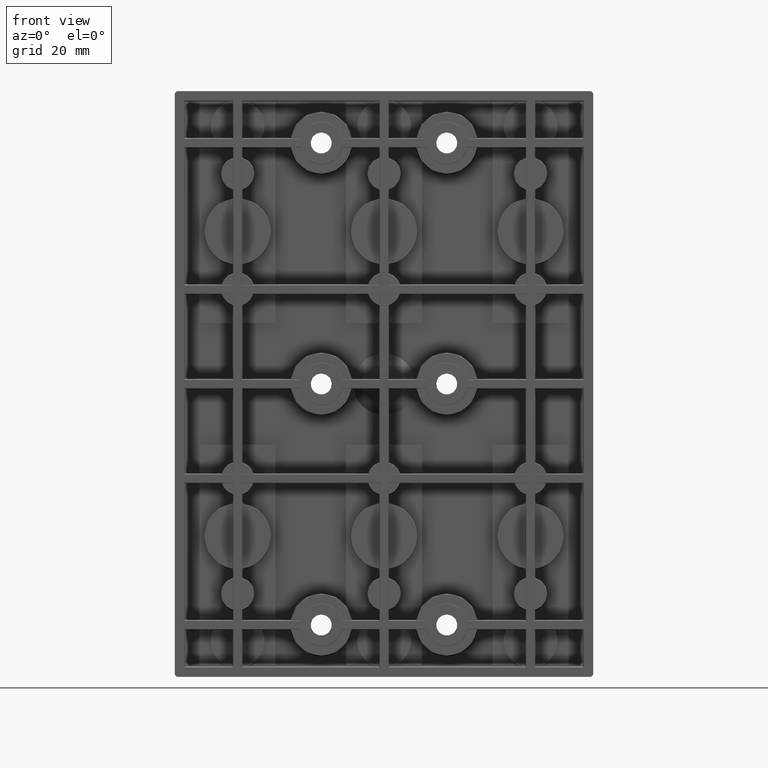
[diagram: clean part render]
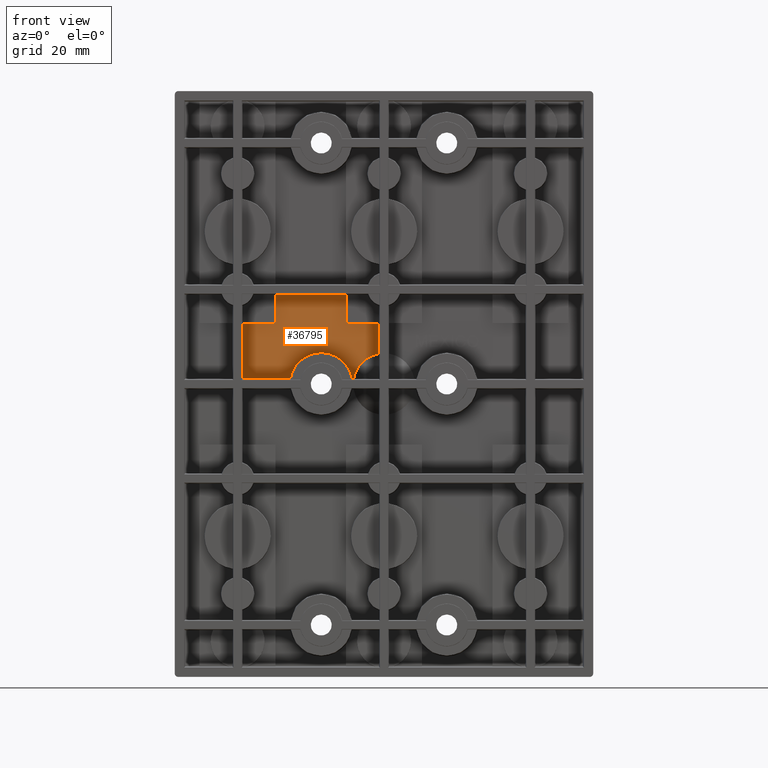
[diagram: same view with one face highlighted and labeled with its STEP entity id]
A machine part, front view. The second image highlights one B-rep face of the part: STEP entity #36795.
In plain terms, the highlighted planar face has unit normal (0, -1, 0).
Its self-contained STEP definition (entity closure, byte-faithful):
#530 = FACE_OUTER_BOUND ( 'NONE', #25296, .T. ) ;
#922 = CARTESIAN_POINT ( 'NONE',  ( -1.294999999999992200, 0.7550000000000000000, 0.7249999999999950900 ) ) ;
#1024 = LINE ( 'NONE', #40444, #17157 ) ;
#1950 = VERTEX_POINT ( 'NONE', #21116 ) ;
#2747 = EDGE_CURVE ( 'NONE', #16910, #12983, #18155, .T. ) ;
#2904 = DIRECTION ( 'NONE',  ( -0.0000000000000000000, 4.937591343513748400E-033, 1.000000000000000000 ) ) ;
#2931 = CARTESIAN_POINT ( 'NONE',  ( -0.1528150672455964000, 0.7550000000000001200, 0.3346633711737749300 ) ) ;
#3986 = ORIENTED_EDGE ( 'NONE', *, *, #31484, .F. ) ;
#4424 = CARTESIAN_POINT ( 'NONE',  ( 2.499999999999984900, 0.7550000000000000000, 3.499999999999984000 ) ) ;
#6227 = CARTESIAN_POINT ( 'NONE',  ( -0.3436647035544258500, 0.7550000000000000000, 0.1353561976983191900 ) ) ;
#6381 = CARTESIAN_POINT ( 'NONE',  ( -0.09949311526371457100, 0.7550000000000005600, 0.3542001307817115300 ) ) ;
#7174 = CARTESIAN_POINT ( 'NONE',  ( -1.687499999999990700, 0.7550000000000000000, 3.499999999999984900 ) ) ;
#7868 = PLANE ( 'NONE',  #40253 ) ;
#8152 = DIRECTION ( 'NONE',  ( 0.0000000000000000000, 1.000000000000000000, -0.0000000000000000000 ) ) ;
#8536 = LINE ( 'NONE', #37744, #9635 ) ;
#8606 = CARTESIAN_POINT ( 'NONE',  ( -1.294999999999992200, 0.7550000000000000000, 3.499999999999984000 ) ) ;
#8884 = ORIENTED_EDGE ( 'NONE', *, *, #39370, .F. ) ;
#8966 = VERTEX_POINT ( 'NONE', #22631 ) ;
#9038 = ORIENTED_EDGE ( 'NONE', *, *, #31733, .T. ) ;
#9315 = LINE ( 'NONE', #7174, #42619 ) ;
#9481 = B_SPLINE_CURVE_WITH_KNOTS ( 'NONE', 3,
 ( #26595, #40473, #6227, #30259, #9684, #33714, #13109, #37191, #16567, #40607, #20014, #44064, #23449, #2931, #26906, #6381, #30397, #9841 ),
 .UNSPECIFIED., .F., .F.,
 ( 4, 2, 2, 2, 2, 2, 2, 2, 4 ),
 ( 1.517883041479706200E-018, 0.002850857584673449500, 0.003563571980841812000, 0.004276286377010173800, 0.005701715169346899800, 0.007127143961683624100, 0.008552572754020349200, 0.009978001546357074400, 0.01140343033869380000 ),
 .UNSPECIFIED. ) ;
#9635 = VECTOR ( 'NONE', #17116, 39.37007874015748100 ) ;
#9684 = CARTESIAN_POINT ( 'NONE',  ( -0.3172628989635370400, 0.7550000000000000000, 0.1855614537071531600 ) ) ;
#9841 = CARTESIAN_POINT ( 'NONE',  ( -0.06249999999999959100, 0.7550000000000000000, 0.3620687089490045600 ) ) ;
#10095 = EDGE_CURVE ( 'NONE', #28309, #12983, #17810, .T. ) ;
#10575 = CARTESIAN_POINT ( 'NONE',  ( 2.499999999999984900, 0.7550000000000000000, 1.067499999999995500 ) ) ;
#10605 = DIRECTION ( 'NONE',  ( 2.717428765842211200E-016, -4.743289554558180800E-018, 1.000000000000000000 ) ) ;
#11380 = LINE ( 'NONE', #18210, #20516 ) ;
#11473 = EDGE_CURVE ( 'NONE', #28309, #33441, #42425, .T. ) ;
#11836 = VERTEX_POINT ( 'NONE', #42496 ) ;
#11945 = DIRECTION ( 'NONE',  ( -1.000000000000000000, 8.989072594533648600E-018, -5.149836240369455700E-016 ) ) ;
#12088 = VERTEX_POINT ( 'NONE', #40525 ) ;
#12925 = DIRECTION ( 'NONE',  ( -1.000000000000000000, -1.734369980111900200E-018, 9.936198961415210800E-017 ) ) ;
#12983 = VERTEX_POINT ( 'NONE', #922 ) ;
#13007 = EDGE_CURVE ( 'NONE', #11836, #12088, #39075, .T. ) ;
#13086 = CARTESIAN_POINT ( 'NONE',  ( -0.4549999999999982900, 0.7550000000000000000, 3.499999999999984000 ) ) ;
#13109 = CARTESIAN_POINT ( 'NONE',  ( -0.3020849705146668700, 0.7549999999999995600, 0.2093617303273693200 ) ) ;
#13309 = ORIENTED_EDGE ( 'NONE', *, *, #11473, .F. ) ;
#13746 = ORIENTED_EDGE ( 'NONE', *, *, #24867, .F. ) ;
#14434 = CARTESIAN_POINT ( 'NONE',  ( -0.06249999999999951400, 0.7550000000000000000, 0.7249999999999947600 ) ) ;
#16567 = CARTESIAN_POINT ( 'NONE',  ( -0.2733363381049348000, 0.7550000000000004500, 0.2462544443563975900 ) ) ;
#16910 = VERTEX_POINT ( 'NONE', #30815 ) ;
#17011 = CARTESIAN_POINT ( 'NONE',  ( -0.3620687089490048400, 0.7549999999999995600, 0.06249999999999986100 ) ) ;
#17116 = DIRECTION ( 'NONE',  ( -1.000000000000000000, -7.164665015247693300E-050, 3.537618795846281300E-082 ) ) ;
#17157 = VECTOR ( 'NONE', #12925, 39.37007874015748100 ) ;
#17468 = DIRECTION ( 'NONE',  ( 1.000000000000000000, 7.164852638477886500E-050, 4.104741327484450300E-048 ) ) ;
#17810 = LINE ( 'NONE', #8606, #44147 ) ;
#18155 = LINE ( 'NONE', #27067, #36448 ) ;
#18210 = CARTESIAN_POINT ( 'NONE',  ( -0.06250000000000009700, 0.7550000000000000000, 3.499999999999983600 ) ) ;
#18356 = DIRECTION ( 'NONE',  ( 2.377750170111932900E-016, 4.150378360238405100E-018, -1.000000000000000000 ) ) ;
#20014 = CARTESIAN_POINT ( 'NONE',  ( -0.2322681148177238600, 0.7550000000000005600, 0.2853129367529539900 ) ) ;
#20510 = LINE ( 'NONE', #13086, #21578 ) ;
#20516 = VECTOR ( 'NONE', #18356, 39.37007874015748100 ) ;
#20692 = VERTEX_POINT ( 'NONE', #32760 ) ;
#21116 = CARTESIAN_POINT ( 'NONE',  ( -0.4549999999999982900, 0.7550000000000000000, 0.7249999999999950900 ) ) ;
#21578 = VECTOR ( 'NONE', #2904, 39.37007874015748100 ) ;
#22165 = CARTESIAN_POINT ( 'NONE',  ( 2.499999999999986200, 0.7550000000000000000, 0.06250000000000162400 ) ) ;
#22448 = CARTESIAN_POINT ( 'NONE',  ( -1.294999999999992200, 0.7550000000000000000, 1.067499999999995500 ) ) ;
#22631 = CARTESIAN_POINT ( 'NONE',  ( -1.687499999999991100, 0.7550000000000000000, 0.06249999999999960400 ) ) ;
#23145 = CARTESIAN_POINT ( 'NONE',  ( -0.4549999999999982900, 0.7550000000000000000, 1.067499999999995500 ) ) ;
#23449 = CARTESIAN_POINT ( 'NONE',  ( -0.1861098082109029800, 0.7550000000000000000, 0.3173565125696538600 ) ) ;
#24100 = VECTOR ( 'NONE', #17468, 39.37007874015748100 ) ;
#24867 = EDGE_CURVE ( 'NONE', #11836, #8966, #37550, .T. ) ;
#25296 = EDGE_LOOP ( 'NONE', ( #9038, #31001, #13309, #27062, #44160, #8884, #13746, #36306, #3986, #32536, #26096 ) ) ;
#26096 = ORIENTED_EDGE ( 'NONE', *, *, #30004, .F. ) ;
#26482 = DIRECTION ( 'NONE',  ( 1.000000000000000000, -1.954844735930462300E-115, -3.959105968740077600E-083 ) ) ;
#26595 = CARTESIAN_POINT ( 'NONE',  ( -0.3620687089490048400, 0.7549999999999995600, 0.06249999999999986100 ) ) ;
#26906 = CARTESIAN_POINT ( 'NONE',  ( -0.1352820596025239600, 0.7550000000000004500, 0.3421335659948603900 ) ) ;
#27062 = ORIENTED_EDGE ( 'NONE', *, *, #10095, .T. ) ;
#27067 = CARTESIAN_POINT ( 'NONE',  ( -2.079999999999992100, 0.7550000000000000000, 0.7249999999999949800 ) ) ;
#28309 = VERTEX_POINT ( 'NONE', #22448 ) ;
#28347 = VECTOR ( 'NONE', #11945, 39.37007874015748100 ) ;
#28679 = CARTESIAN_POINT ( 'NONE',  ( -0.7499999999999956700, 0.7550000000000000000, 0.0000000000000000000 ) ) ;
#30004 = EDGE_CURVE ( 'NONE', #33673, #20692, #11380, .T. ) ;
#30259 = CARTESIAN_POINT ( 'NONE',  ( -0.3219604164314755500, 0.7550000000000001200, 0.1772869448000938500 ) ) ;
#30397 = CARTESIAN_POINT ( 'NONE',  ( -0.08119919887326844400, 0.7550000000000001200, 0.3588408687609603900 ) ) ;
#30815 = CARTESIAN_POINT ( 'NONE',  ( -1.687499999999991600, 0.7550000000000000000, 0.7249999999999950900 ) ) ;
#31001 = ORIENTED_EDGE ( 'NONE', *, *, #35900, .T. ) ;
#31484 = EDGE_CURVE ( 'NONE', #32803, #12088, #1024, .T. ) ;
#31733 = EDGE_CURVE ( 'NONE', #33673, #1950, #8536, .T. ) ;
#31903 = DIRECTION ( 'NONE',  ( 0.0000000000000000000, -4.937591343513748400E-033, -1.000000000000000000 ) ) ;
#32177 = DIRECTION ( 'NONE',  ( 0.0000000000000000000, 0.0000000000000000000, 1.000000000000000000 ) ) ;
#32536 = ORIENTED_EDGE ( 'NONE', *, *, #33459, .T. ) ;
#32760 = CARTESIAN_POINT ( 'NONE',  ( -0.06249999999999959100, 0.7550000000000000000, 0.3620687089490045600 ) ) ;
#32803 = VERTEX_POINT ( 'NONE', #17011 ) ;
#32888 = AXIS2_PLACEMENT_3D ( 'NONE', #28679, #8152, #32177 ) ;
#33441 = VERTEX_POINT ( 'NONE', #23145 ) ;
#33459 = EDGE_CURVE ( 'NONE', #32803, #20692, #9481, .T. ) ;
#33673 = VERTEX_POINT ( 'NONE', #14434 ) ;
#33714 = CARTESIAN_POINT ( 'NONE',  ( -0.3073337882446854400, 0.7550000000000002300, 0.2015806110811016700 ) ) ;
#35900 = EDGE_CURVE ( 'NONE', #1950, #33441, #20510, .T. ) ;
#36306 = ORIENTED_EDGE ( 'NONE', *, *, #13007, .T. ) ;
#36448 = VECTOR ( 'NONE', #26482, 39.37007874015748100 ) ;
#36795 = ADVANCED_FACE ( 'NONE', ( #530 ), #7868, .T. ) ;
#37191 = CARTESIAN_POINT ( 'NONE',  ( -0.2855020514085174200, 0.7549999999999997800, 0.2320328269611849100 ) ) ;
#37550 = LINE ( 'NONE', #22165, #28347 ) ;
#37744 = CARTESIAN_POINT ( 'NONE',  ( 2.499999999999984900, 0.7550000000000000000, 0.7249999999999950900 ) ) ;
#39075 = CIRCLE ( 'NONE', #32888, 0.3749999999999987800 ) ;
#39370 = EDGE_CURVE ( 'NONE', #8966, #16910, #9315, .T. ) ;
#39547 = DIRECTION ( 'NONE',  ( 0.0000000000000000000, -4.937591343513748400E-033, -1.000000000000000000 ) ) ;
#40253 = AXIS2_PLACEMENT_3D ( 'NONE', #4424, #42111, #31903 ) ;
#40444 = CARTESIAN_POINT ( 'NONE',  ( 2.499999999999984500, 0.7550000000000000000, 0.06249999999999943800 ) ) ;
#40473 = CARTESIAN_POINT ( 'NONE',  ( -0.3556130285729146600, 0.7549999999999997800, 0.09989839774653723500 ) ) ;
#40525 = CARTESIAN_POINT ( 'NONE',  ( -0.3802450135562707700, 0.7550000000000000000, 0.06249999999999972900 ) ) ;
#40607 = CARTESIAN_POINT ( 'NONE',  ( -0.2467521324406563300, 0.7550000000000005600, 0.2728871382639390700 ) ) ;
#42111 = DIRECTION ( 'NONE',  ( 7.164665015247693300E-050, -1.000000000000000000, 4.937591343513748400E-033 ) ) ;
#42425 = LINE ( 'NONE', #10575, #24100 ) ;
#42496 = CARTESIAN_POINT ( 'NONE',  ( -1.119754986443720400, 0.7550000000000000000, 0.06249999999999975700 ) ) ;
#42619 = VECTOR ( 'NONE', #10605, 39.37007874015748100 ) ;
#44064 = CARTESIAN_POINT ( 'NONE',  ( -0.2020003303395198100, 0.7550000000000004500, 0.3074862851938266500 ) ) ;
#44147 = VECTOR ( 'NONE', #39547, 39.37007874015748100 ) ;
#44160 = ORIENTED_EDGE ( 'NONE', *, *, #2747, .F. ) ;